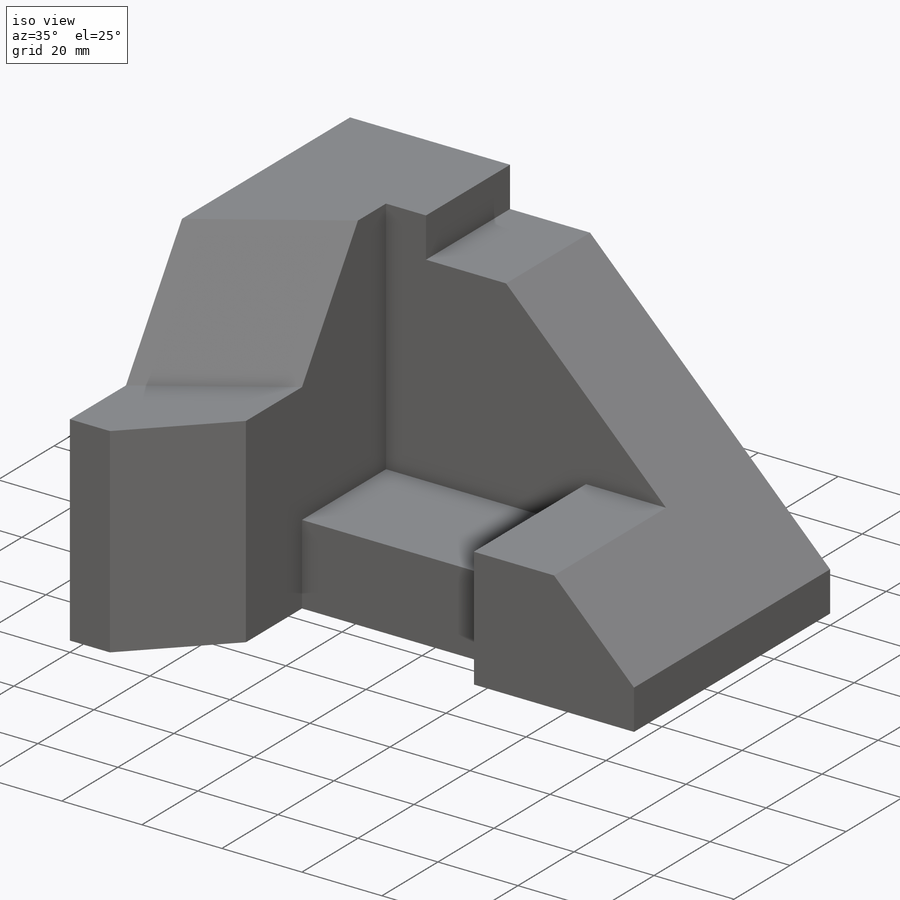
[diagram: iso view]
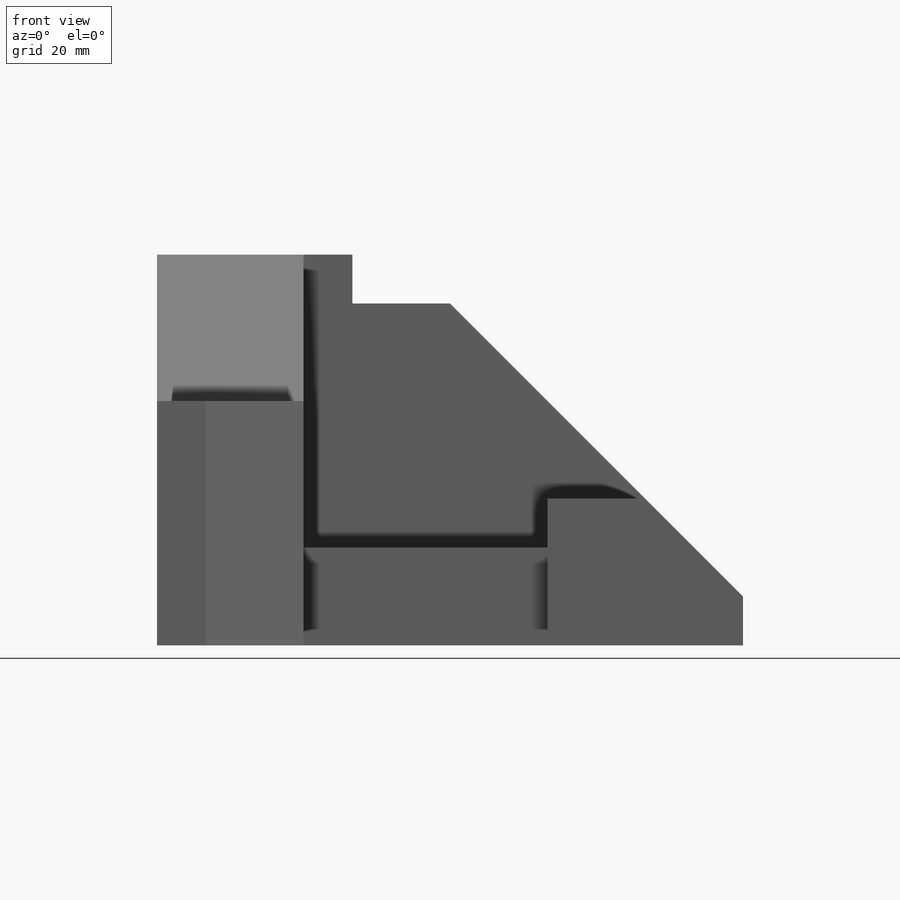
[diagram: front view]
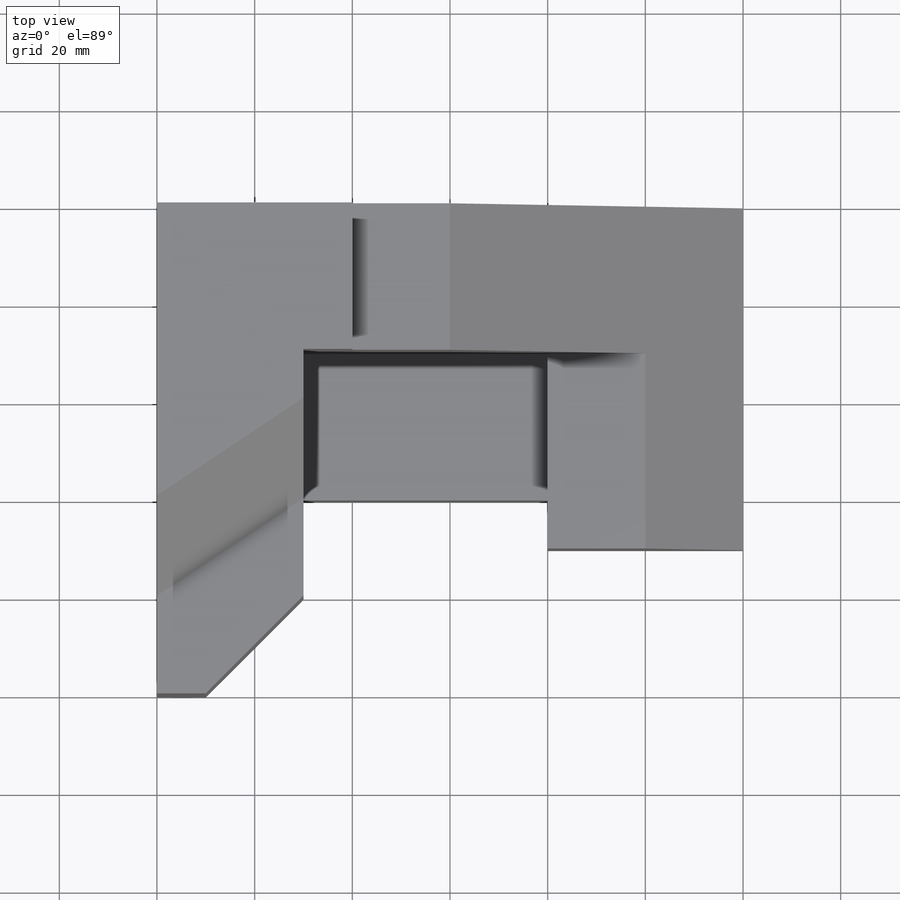
[diagram: top view]
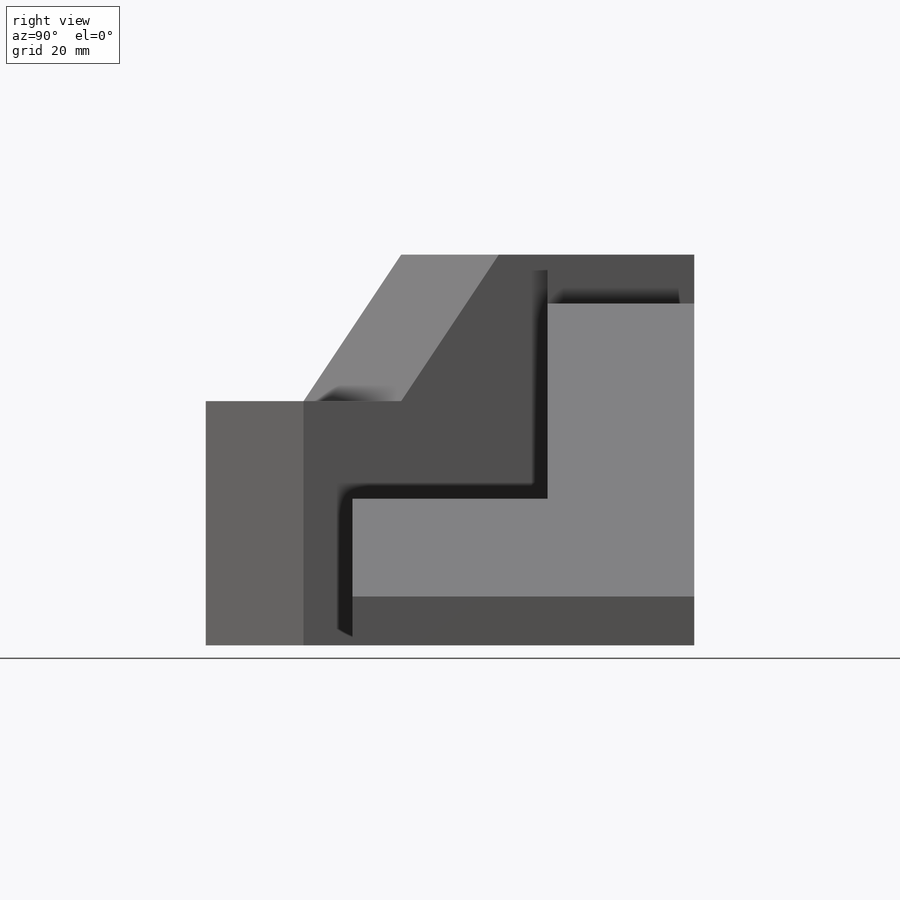
[diagram: right view]
SOLIDWORKS PART (.sldprt)
format: sldprt  version: not decoded by parser v0  size: 385,024 bytes
history: native  units: mm
features: sketch x18, extrude x10, cut_extrude x7, plane x3, material x1 (+13 scaffold rows collapsed)
feature tree (52):
  scaffold x13  (default folders/planes/origin — collapsed)
  material  "Material <not specified>"
  sketch  "Sketch1"  dims[D1=60.0mm D2=40.0mm D3=30.0mm D4=10.0mm D5=10.0mm]
  extrude  "Boss-Extrude1"  Depth=80mm
  sketch  "Sketch2"  dims[D1=40.0mm D2=50.0mm D3=20.0mm D4=0.0mm]
  extrude  "Boss-Extrude6"  Depth=10mm
  sketch  "Sketch7"  dims[D1=30.0mm D2=20.0mm]
  plane  "Plane2"
  sketch  "Sketch8"
  cut_extrude  "Cut-Extrude3"  Depth=149mm
  plane  "Plane3"  Offset=20mm
  sketch  "Sketch10"
  extrude  "Boss-Extrude7"  Depth=20mm
  sketch  "Sketch11"
  cut_extrude  "Cut-Extrude4"  Depth=20mm
  sketch  "Sketch12"
  cut_extrude  "Cut-Extrude5"  Depth=20mm
  sketch  "Sketch14"  dims[D1=50.0mm]
  cut_extrude  "Cut-Extrude6"  Depth=29mm
  sketch  "Sketch15"  dims[D1=50.0mm]
  cut_extrude  "Cut-Extrude7"  Depth=29mm
  plane  "Plane4"  Offset=70mm
  sketch  "Sketch16"  dims[D1=20.0mm D2=30.0mm D3=0.0mm]
  extrude  "Boss-Extrude8"  Depth=70mm
  sketch  "Sketch17"  dims[D1=20.0mm D2=10.0mm D3=20.0mm]
  extrude  "Boss-Extrude10"  Depth=30mm
  sketch  "Sketch21"  dims[D1=~43.205783mm D2=~74.052807mm]
  cut_extrude  "Cut-Extrude9"  Depth=30mm
  sketch  "Sketch22"  dims[D1=20.0mm]
  cut_extrude  "Cut-Extrude10"  Depth=30mm
  sketch  "Sketch23"  dims[D1=40.0mm D2=40.0mm D3=10.0mm D4=20.0mm]
  extrude  "Boss-Extrude11"  Depth=30mm
  sketch  "Sketch24"  dims[D1=10.0mm D2=40.0mm]
  extrude  "Boss-Extrude12"  Depth=30mm
  sketch  "Sketch25"
  extrude  "Boss-Extrude13"  Depth=60mm
  sketch  "Sketch28"  dims[D1=20.0mm D2=20.0mm D3=20.0mm]
  extrude  "Boss-Extrude16"  Depth=50mm
  sketch  "Sketch29"
  extrude  "Boss-Extrude17"  Depth=20mm
decode coverage: 29 of 35 modeling features carry decoded parameters
note: ~ marks probable driven/reference dimensions
note: suppression state not decoded; provenance and decode notes live in map.json
